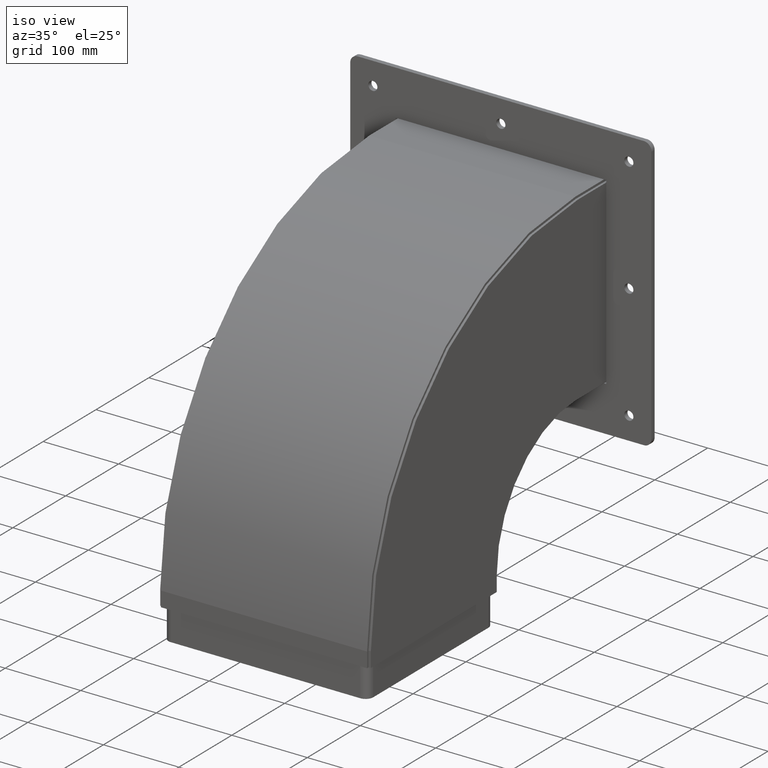
[diagram: clean part render]
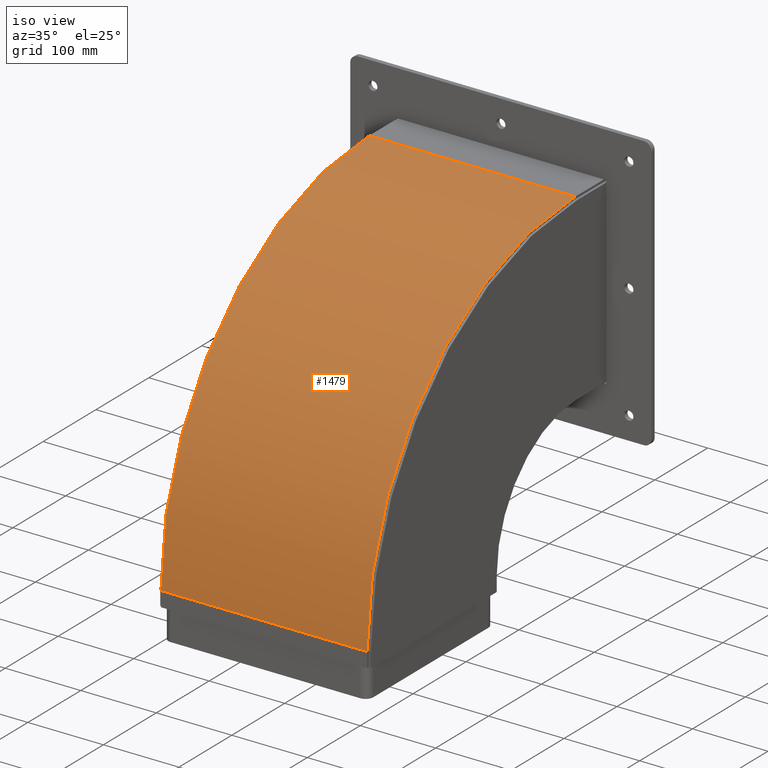
[diagram: same view with one face highlighted and labeled with its STEP entity id]
A machine part, iso view. The second image highlights one B-rep face of the part: STEP entity #1479.
In plain terms, the highlighted cylindrical surface (partial cylindrical patch) has radius 394 mm, axis along (-1, -0, 0).
Its self-contained STEP definition (entity closure, byte-faithful):
#1421=CARTESIAN_POINT('',(-141.500000000000000,-160.000000000000110,-207.999999999999550));
#1422=VERTEX_POINT('',#1421);
#1429=CARTESIAN_POINT('',(131.500000000000000,-160.000000000000110,-207.999999999999550));
#1430=VERTEX_POINT('',#1429);
#1431=CARTESIAN_POINT('',(131.500000000000000,-160.000000000000110,-207.999999999999550));
#1432=DIRECTION('',(-1.0,0.0,0.0));
#1433=VECTOR('',#1432,273.0);
#1434=LINE('',#1431,#1433);
#1435=EDGE_CURVE('',#1430,#1422,#1434,.T.);
#1447=CARTESIAN_POINT('',(131.500000000000000,-160.000000000000110,186.0));
#1448=DIRECTION('',(-1.0,0.0,0.0));
#1449=DIRECTION('',(0.0,0.0,1.0));
#1450=AXIS2_PLACEMENT_3D('',#1447,#1448,#1449);
#1451=CYLINDRICAL_SURFACE('',#1450,394.0);
#1452=CARTESIAN_POINT('',(-141.500000000000000,233.999999999999890,186.0));
#1453=VERTEX_POINT('',#1452);
#1454=CARTESIAN_POINT('',(-141.500000000000000,-160.000000000000110,186.0));
#1455=DIRECTION('',(1.0,0.0,0.0));
#1456=DIRECTION('',(0.0,0.0,1.0));
#1457=AXIS2_PLACEMENT_3D('',#1454,#1455,#1456);
#1458=CIRCLE('',#1457,394.0);
#1459=EDGE_CURVE('',#1422,#1453,#1458,.T.);
#1460=ORIENTED_EDGE('',*,*,#1459,.T.);
#1461=CARTESIAN_POINT('',(131.500000000000000,233.999999999999890,186.0));
#1462=VERTEX_POINT('',#1461);
#1463=CARTESIAN_POINT('',(131.500000000000000,233.999999999999890,186.0));
#1464=DIRECTION('',(-1.0,0.0,0.0));
#1465=VECTOR('',#1464,273.0);
#1466=LINE('',#1463,#1465);
#1467=EDGE_CURVE('',#1462,#1453,#1466,.T.);
#1468=ORIENTED_EDGE('',*,*,#1467,.F.);
#1469=CARTESIAN_POINT('',(131.500000000000000,-160.000000000000110,186.0));
#1470=DIRECTION('',(-1.0,0.0,0.0));
#1471=DIRECTION('',(0.0,0.0,1.0));
#1472=AXIS2_PLACEMENT_3D('',#1469,#1470,#1471);
#1473=CIRCLE('',#1472,394.0);
#1474=EDGE_CURVE('',#1462,#1430,#1473,.T.);
#1475=ORIENTED_EDGE('',*,*,#1474,.T.);
#1476=ORIENTED_EDGE('',*,*,#1435,.T.);
#1477=EDGE_LOOP('',(#1460,#1468,#1475,#1476));
#1478=FACE_OUTER_BOUND('',#1477,.T.);
#1479=ADVANCED_FACE('',(#1478),#1451,.T.);